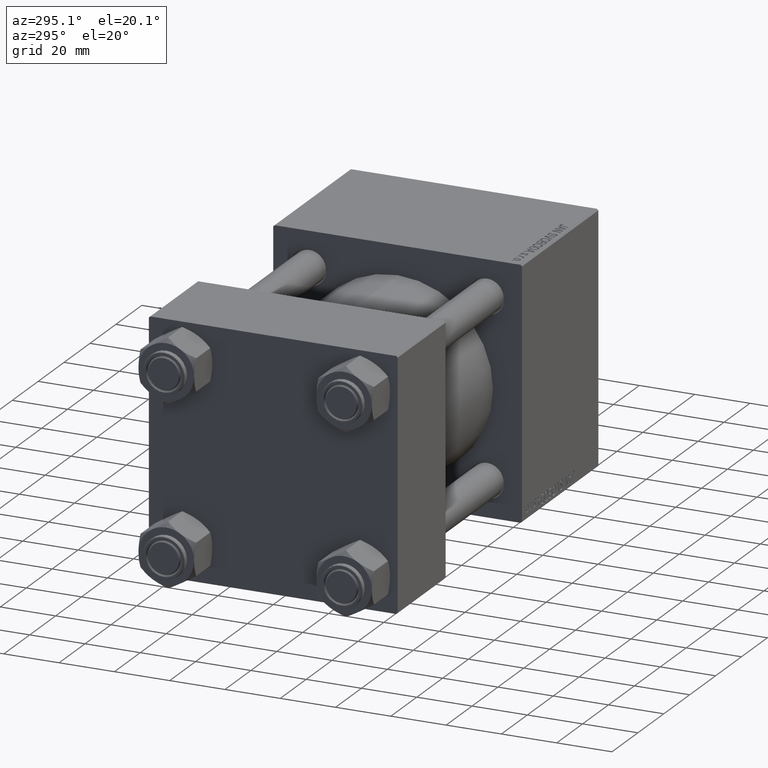
[diagram: clean part render]
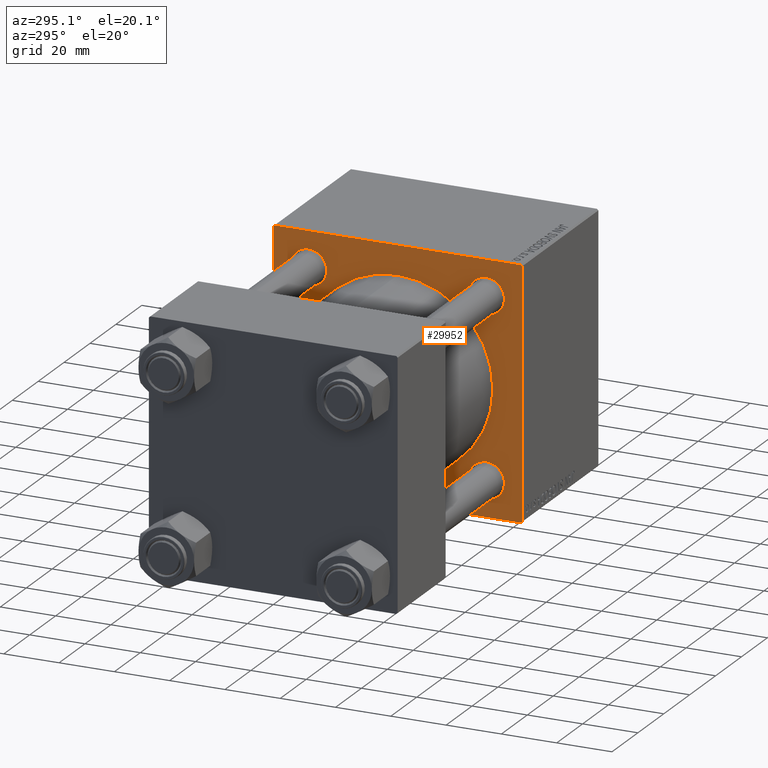
[diagram: same view with one face highlighted and labeled with its STEP entity id]
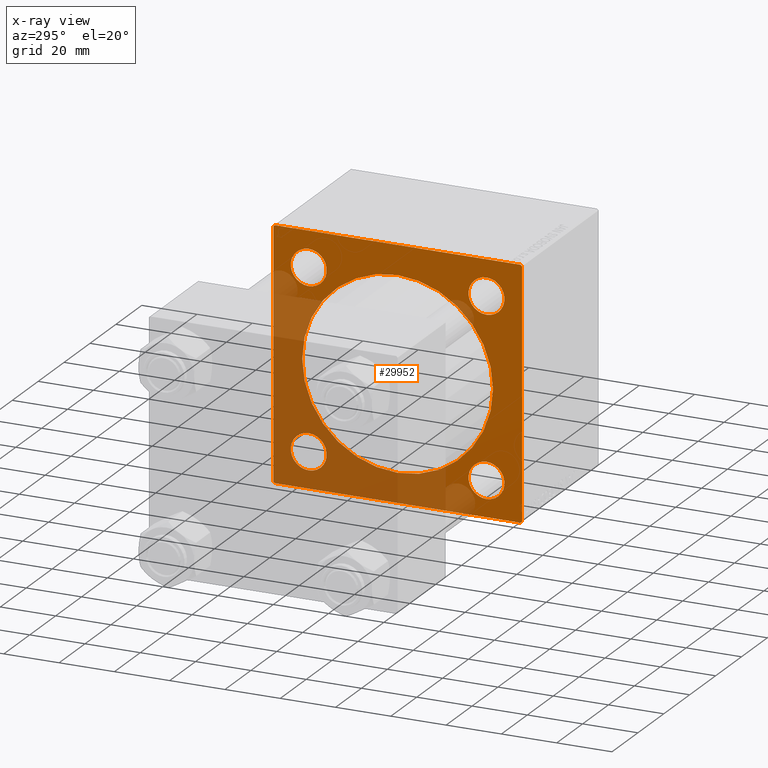
[diagram: x-ray of the same camera — body ghosted, the highlighted face saturated]
A machine part, auxiliary view. The second image highlights one B-rep face of the part: STEP entity #29952.
The next image is the same camera in x-ray: the body ghosted, the highlighted face saturated — about 42% of this face is hidden behind the body in this view.
In plain terms, the highlighted planar face has unit normal (-1, 0, 0).
Its self-contained STEP definition (entity closure, byte-faithful):
#27 = VECTOR ( 'NONE', #26180, 1000.000000000000114 ) ;
#410 = LINE ( 'NONE', #15891, #47507 ) ;
#999 = VERTEX_POINT ( 'NONE', #46483 ) ;
#1084 = ORIENTED_EDGE ( 'NONE', *, *, #8091, .T. ) ;
#1217 = LINE ( 'NONE', #16706, #19579 ) ;
#1396 = CARTESIAN_POINT ( 'NONE',  ( 96.00000000000000000, -45.00000000000000000, 44.49999999999995737 ) ) ;
#1727 = CIRCLE ( 'NONE', #35147, 6.500000000000005329 ) ;
#1833 = ORIENTED_EDGE ( 'NONE', *, *, #40652, .T. ) ;
#1907 = EDGE_CURVE ( 'NONE', #44711, #50215, #45719, .T. ) ;
#2358 = VERTEX_POINT ( 'NONE', #42083 ) ;
#2610 = DIRECTION ( 'NONE',  ( 1.000000000000000000, 0.000000000000000000, 0.000000000000000000 ) ) ;
#2962 = DIRECTION ( 'NONE',  ( 0.000000000000000000, 0.000000000000000000, 1.000000000000000000 ) ) ;
#4386 = DIRECTION ( 'NONE',  ( 0.000000000000000000, -1.000000000000000000, -1.541976423090495140E-16 ) ) ;
#4658 = CIRCLE ( 'NONE', #23334, 6.500000000000005329 ) ;
#5418 = ORIENTED_EDGE ( 'NONE', *, *, #27311, .T. ) ;
#5629 = DIRECTION ( 'NONE',  ( 0.000000000000000000, 0.000000000000000000, -1.000000000000000000 ) ) ;
#5931 = DIRECTION ( 'NONE',  ( 1.000000000000000000, 0.000000000000000000, 0.000000000000000000 ) ) ;
#6214 = FACE_BOUND ( 'NONE', #29185, .T. ) ;
#6270 = DIRECTION ( 'NONE',  ( 1.000000000000000000, 0.000000000000000000, 0.000000000000000000 ) ) ;
#6382 = CARTESIAN_POINT ( 'NONE',  ( 96.00000000000000000, -2.602085213965210642E-15, 0.000000000000000000 ) ) ;
#6550 = AXIS2_PLACEMENT_3D ( 'NONE', #34061, #34310, #6846 ) ;
#6846 = DIRECTION ( 'NONE',  ( 0.000000000000000000, 0.000000000000000000, 1.000000000000000000 ) ) ;
#7020 = EDGE_CURVE ( 'NONE', #15795, #37057, #25513, .T. ) ;
#7080 = VECTOR ( 'NONE', #4386, 1000.000000000000000 ) ;
#7179 = CARTESIAN_POINT ( 'NONE',  ( 96.00000000000000000, -44.99999999999999289, -44.49999999999991473 ) ) ;
#7248 = CARTESIAN_POINT ( 'NONE',  ( 96.00000000000000000, 32.14999999999999147, 32.15000000000000568 ) ) ;
#7677 = EDGE_CURVE ( 'NONE', #26199, #27263, #18752, .T. ) ;
#7689 = AXIS2_PLACEMENT_3D ( 'NONE', #7248, #6270, #45439 ) ;
#7718 = CARTESIAN_POINT ( 'NONE',  ( 96.00000000000000000, 32.14999999999999147, -38.65000000000001279 ) ) ;
#7930 = CIRCLE ( 'NONE', #29022, 34.50000000000000000 ) ;
#7977 = EDGE_CURVE ( 'NONE', #37057, #15795, #12605, .T. ) ;
#8091 = EDGE_CURVE ( 'NONE', #28376, #44432, #410, .T. ) ;
#8110 = ORIENTED_EDGE ( 'NONE', *, *, #46058, .T. ) ;
#8226 = ORIENTED_EDGE ( 'NONE', *, *, #7977, .T. ) ;
#9226 = DIRECTION ( 'NONE',  ( 0.000000000000000000, 7.709882115452478166E-17, -1.000000000000000000 ) ) ;
#9334 = VECTOR ( 'NONE', #45498, 1000.000000000000000 ) ;
#9531 = DIRECTION ( 'NONE',  ( -1.000000000000000000, 0.000000000000000000, -0.000000000000000000 ) ) ;
#9770 = DIRECTION ( 'NONE',  ( 0.000000000000000000, -0.7071067811865524577, 0.7071067811865426878 ) ) ;
#9833 = DIRECTION ( 'NONE',  ( 1.000000000000000000, 0.000000000000000000, 0.000000000000000000 ) ) ;
#9980 = CARTESIAN_POINT ( 'NONE',  ( 96.00000000000000000, 45.00000000000001421, -45.00000000000000000 ) ) ;
#9994 = DIRECTION ( 'NONE',  ( 0.000000000000000000, 0.000000000000000000, -1.000000000000000000 ) ) ;
#10032 = FACE_BOUND ( 'NONE', #35093, .T. ) ;
#10154 = CARTESIAN_POINT ( 'NONE',  ( 96.00000000000000000, 32.14999999999999147, -32.15000000000000568 ) ) ;
#10211 = CARTESIAN_POINT ( 'NONE',  ( 96.00000000000000000, -2.602085213965210642E-15, 34.50000000000000000 ) ) ;
#10283 = FACE_OUTER_BOUND ( 'NONE', #15392, .T. ) ;
#10835 = CARTESIAN_POINT ( 'NONE',  ( 96.00000000000000000, -32.14999999999997726, -32.15000000000001279 ) ) ;
#10973 = EDGE_CURVE ( 'NONE', #22608, #34882, #20383, .T. ) ;
#11062 = EDGE_CURVE ( 'NONE', #50215, #44711, #7930, .T. ) ;
#12034 = EDGE_CURVE ( 'NONE', #48699, #34882, #48937, .T. ) ;
#12074 = CARTESIAN_POINT ( 'NONE',  ( 96.00000000000000000, 45.00000000000001421, 44.49999999999997158 ) ) ;
#12437 = AXIS2_PLACEMENT_3D ( 'NONE', #39529, #20178, #12795 ) ;
#12605 = CIRCLE ( 'NONE', #7689, 6.499999999999999112 ) ;
#12787 = LINE ( 'NONE', #9980, #46352 ) ;
#12795 = DIRECTION ( 'NONE',  ( 0.000000000000000000, 0.000000000000000000, 1.000000000000000000 ) ) ;
#12919 = EDGE_CURVE ( 'NONE', #26734, #45342, #45215, .T. ) ;
#13442 = ORIENTED_EDGE ( 'NONE', *, *, #1907, .T. ) ;
#13477 = CARTESIAN_POINT ( 'NONE',  ( 96.00000000000000000, 44.75000000000000000, -44.75000000000000000 ) ) ;
#13719 = CARTESIAN_POINT ( 'NONE',  ( 96.00000000000000000, 45.00000000000001421, -44.49999999999997158 ) ) ;
#13847 = CIRCLE ( 'NONE', #6550, 6.500000000000005329 ) ;
#14893 = CARTESIAN_POINT ( 'NONE',  ( 96.00000000000000000, 32.14999999999999147, 32.15000000000000568 ) ) ;
#15392 = EDGE_LOOP ( 'NONE', ( #31514, #1084, #20232, #41533, #26276, #40713, #27122, #18200 ) ) ;
#15795 = VERTEX_POINT ( 'NONE', #25957 ) ;
#15801 = EDGE_LOOP ( 'NONE', ( #1833, #47666 ) ) ;
#15886 = CARTESIAN_POINT ( 'NONE',  ( 96.00000000000000000, -32.14999999999997726, -38.65000000000001990 ) ) ;
#15891 = CARTESIAN_POINT ( 'NONE',  ( 96.00000000000000000, -44.74999999999965183, -44.75000000000027001 ) ) ;
#16706 = CARTESIAN_POINT ( 'NONE',  ( 96.00000000000000000, 44.74999999999998579, 44.74999999999998579 ) ) ;
#17635 = DIRECTION ( 'NONE',  ( -0.000000000000000000, 0.7071067811865474617, 0.7071067811865474617 ) ) ;
#17646 = CARTESIAN_POINT ( 'NONE',  ( 96.00000000000000000, 0.000000000000000000, 0.000000000000000000 ) ) ;
#17735 = CARTESIAN_POINT ( 'NONE',  ( 96.00000000000000000, -32.14999999999997726, 32.15000000000001279 ) ) ;
#17968 = DIRECTION ( 'NONE',  ( 1.000000000000000000, 0.000000000000000000, 0.000000000000000000 ) ) ;
#18200 = ORIENTED_EDGE ( 'NONE', *, *, #42495, .T. ) ;
#18752 = LINE ( 'NONE', #26157, #9334 ) ;
#18758 = DIRECTION ( 'NONE',  ( 1.000000000000000000, 0.000000000000000000, 0.000000000000000000 ) ) ;
#19579 = VECTOR ( 'NONE', #39366, 1000.000000000000114 ) ;
#19618 = VECTOR ( 'NONE', #9226, 1000.000000000000000 ) ;
#20178 = DIRECTION ( 'NONE',  ( 1.000000000000000000, 0.000000000000000000, 0.000000000000000000 ) ) ;
#20232 = ORIENTED_EDGE ( 'NONE', *, *, #26825, .F. ) ;
#20383 = LINE ( 'NONE', #47617, #7080 ) ;
#20821 = EDGE_LOOP ( 'NONE', ( #44734, #27818 ) ) ;
#21157 = LINE ( 'NONE', #36206, #19618 ) ;
#21462 = VECTOR ( 'NONE', #17635, 1000.000000000000114 ) ;
#21780 = DIRECTION ( 'NONE',  ( 0.000000000000000000, 0.000000000000000000, 1.000000000000000000 ) ) ;
#21805 = DIRECTION ( 'NONE',  ( 1.000000000000000000, 0.000000000000000000, 0.000000000000000000 ) ) ;
#22051 = AXIS2_PLACEMENT_3D ( 'NONE', #17735, #21805, #44975 ) ;
#22346 = CARTESIAN_POINT ( 'NONE',  ( 96.00000000000000000, 44.49999999999998579, 45.00000000000000000 ) ) ;
#22608 = VERTEX_POINT ( 'NONE', #22346 ) ;
#23334 = AXIS2_PLACEMENT_3D ( 'NONE', #10154, #18758, #26641 ) ;
#24756 = DIRECTION ( 'NONE',  ( 0.000000000000000000, 0.000000000000000000, 1.000000000000000000 ) ) ;
#24877 = ORIENTED_EDGE ( 'NONE', *, *, #7020, .T. ) ;
#25035 = FACE_BOUND ( 'NONE', #15801, .T. ) ;
#25158 = CARTESIAN_POINT ( 'NONE',  ( 96.00000000000000000, -32.14999999999997726, 25.65000000000000213 ) ) ;
#25488 = DIRECTION ( 'NONE',  ( 0.000000000000000000, -1.000000000000000000, 0.000000000000000000 ) ) ;
#25513 = CIRCLE ( 'NONE', #46662, 6.499999999999999112 ) ;
#25789 = DIRECTION ( 'NONE',  ( -0.000000000000000000, 0.000000000000000000, 1.000000000000000000 ) ) ;
#25957 = CARTESIAN_POINT ( 'NONE',  ( 96.00000000000000000, 32.14999999999999147, 38.65000000000001279 ) ) ;
#26025 = CARTESIAN_POINT ( 'NONE',  ( 96.00000000000000000, 32.14999999999999147, -25.64999999999999858 ) ) ;
#26122 = ORIENTED_EDGE ( 'NONE', *, *, #11062, .T. ) ;
#26157 = CARTESIAN_POINT ( 'NONE',  ( 96.00000000000000000, 45.00000000000001421, 45.00000000000000000 ) ) ;
#26180 = DIRECTION ( 'NONE',  ( -0.000000000000000000, -0.7071067811865474617, -0.7071067811865474617 ) ) ;
#26199 = VERTEX_POINT ( 'NONE', #12074 ) ;
#26276 = ORIENTED_EDGE ( 'NONE', *, *, #10973, .F. ) ;
#26474 = CARTESIAN_POINT ( 'NONE',  ( 96.00000000000000000, -32.14999999999997726, 38.65000000000002700 ) ) ;
#26641 = DIRECTION ( 'NONE',  ( 0.000000000000000000, 0.000000000000000000, 1.000000000000000000 ) ) ;
#26734 = VERTEX_POINT ( 'NONE', #7718 ) ;
#26825 = EDGE_CURVE ( 'NONE', #48699, #44432, #21157, .T. ) ;
#26936 = EDGE_CURVE ( 'NONE', #999, #28376, #12787, .T. ) ;
#26991 = EDGE_LOOP ( 'NONE', ( #13442, #26122 ) ) ;
#27122 = ORIENTED_EDGE ( 'NONE', *, *, #7677, .T. ) ;
#27263 = VERTEX_POINT ( 'NONE', #13719 ) ;
#27311 = EDGE_CURVE ( 'NONE', #45894, #49989, #13847, .T. ) ;
#27818 = ORIENTED_EDGE ( 'NONE', *, *, #32325, .T. ) ;
#28253 = AXIS2_PLACEMENT_3D ( 'NONE', #41042, #5931, #24756 ) ;
#28376 = VERTEX_POINT ( 'NONE', #46777 ) ;
#28859 = PLANE ( 'NONE',  #47274 ) ;
#29022 = AXIS2_PLACEMENT_3D ( 'NONE', #6382, #49369, #5629 ) ;
#29185 = EDGE_LOOP ( 'NONE', ( #24877, #8226 ) ) ;
#29427 = CARTESIAN_POINT ( 'NONE',  ( 96.00000000000000000, 1.622946243093158675E-15, -34.50000000000000000 ) ) ;
#29674 = CARTESIAN_POINT ( 'NONE',  ( 96.00000000000000000, 32.14999999999999147, 25.65000000000000213 ) ) ;
#29952 = ADVANCED_FACE ( 'NONE', ( #10032, #6214, #25035, #48948, #48688, #10283 ), #28859, .T. ) ;
#31514 = ORIENTED_EDGE ( 'NONE', *, *, #26936, .T. ) ;
#32325 = EDGE_CURVE ( 'NONE', #36464, #2358, #48163, .T. ) ;
#34061 = CARTESIAN_POINT ( 'NONE',  ( 96.00000000000000000, -32.14999999999997726, 32.15000000000001279 ) ) ;
#34310 = DIRECTION ( 'NONE',  ( 1.000000000000000000, 0.000000000000000000, 0.000000000000000000 ) ) ;
#34882 = VERTEX_POINT ( 'NONE', #39011 ) ;
#35093 = EDGE_LOOP ( 'NONE', ( #8110, #5418 ) ) ;
#35147 = AXIS2_PLACEMENT_3D ( 'NONE', #10835, #9833, #21780 ) ;
#36206 = CARTESIAN_POINT ( 'NONE',  ( 96.00000000000000000, -45.00000000000000000, 44.99999999999998579 ) ) ;
#36464 = VERTEX_POINT ( 'NONE', #15886 ) ;
#37057 = VERTEX_POINT ( 'NONE', #29674 ) ;
#37582 = AXIS2_PLACEMENT_3D ( 'NONE', #48401, #2610, #9994 ) ;
#39011 = CARTESIAN_POINT ( 'NONE',  ( 96.00000000000000000, -44.49999999999994316, 44.99999999999998579 ) ) ;
#39366 = DIRECTION ( 'NONE',  ( 0.000000000000000000, 0.7071067811865474617, -0.7071067811865474617 ) ) ;
#39529 = CARTESIAN_POINT ( 'NONE',  ( 96.00000000000000000, -32.14999999999997726, -32.15000000000001279 ) ) ;
#40652 = EDGE_CURVE ( 'NONE', #45342, #26734, #4658, .T. ) ;
#40702 = LINE ( 'NONE', #13477, #27 ) ;
#40713 = ORIENTED_EDGE ( 'NONE', *, *, #44729, .T. ) ;
#41042 = CARTESIAN_POINT ( 'NONE',  ( 96.00000000000000000, 32.14999999999999147, -32.15000000000000568 ) ) ;
#41533 = ORIENTED_EDGE ( 'NONE', *, *, #12034, .T. ) ;
#42083 = CARTESIAN_POINT ( 'NONE',  ( 96.00000000000000000, -32.14999999999997726, -25.65000000000000568 ) ) ;
#42495 = EDGE_CURVE ( 'NONE', #27263, #999, #40702, .T. ) ;
#44432 = VERTEX_POINT ( 'NONE', #7179 ) ;
#44711 = VERTEX_POINT ( 'NONE', #10211 ) ;
#44729 = EDGE_CURVE ( 'NONE', #22608, #26199, #1217, .T. ) ;
#44734 = ORIENTED_EDGE ( 'NONE', *, *, #49363, .T. ) ;
#44975 = DIRECTION ( 'NONE',  ( 0.000000000000000000, 0.000000000000000000, 1.000000000000000000 ) ) ;
#45124 = CARTESIAN_POINT ( 'NONE',  ( 96.00000000000000000, -44.74999999999997158, 44.74999999999997158 ) ) ;
#45215 = CIRCLE ( 'NONE', #28253, 6.500000000000005329 ) ;
#45342 = VERTEX_POINT ( 'NONE', #26025 ) ;
#45439 = DIRECTION ( 'NONE',  ( 0.000000000000000000, 0.000000000000000000, 1.000000000000000000 ) ) ;
#45498 = DIRECTION ( 'NONE',  ( 0.000000000000000000, 0.000000000000000000, -1.000000000000000000 ) ) ;
#45719 = CIRCLE ( 'NONE', #37582, 34.50000000000000000 ) ;
#45894 = VERTEX_POINT ( 'NONE', #25158 ) ;
#46058 = EDGE_CURVE ( 'NONE', #49989, #45894, #46462, .T. ) ;
#46352 = VECTOR ( 'NONE', #25488, 1000.000000000000000 ) ;
#46462 = CIRCLE ( 'NONE', #22051, 6.500000000000005329 ) ;
#46483 = CARTESIAN_POINT ( 'NONE',  ( 96.00000000000000000, 44.50000000000001421, -45.00000000000000000 ) ) ;
#46662 = AXIS2_PLACEMENT_3D ( 'NONE', #14893, #17968, #2962 ) ;
#46777 = CARTESIAN_POINT ( 'NONE',  ( 96.00000000000000000, -44.49999999999990052, -45.00000000000000000 ) ) ;
#47274 = AXIS2_PLACEMENT_3D ( 'NONE', #17646, #9531, #25789 ) ;
#47507 = VECTOR ( 'NONE', #9770, 1000.000000000000000 ) ;
#47617 = CARTESIAN_POINT ( 'NONE',  ( 96.00000000000000000, 45.00000000000001421, 45.00000000000000000 ) ) ;
#47666 = ORIENTED_EDGE ( 'NONE', *, *, #12919, .T. ) ;
#48163 = CIRCLE ( 'NONE', #12437, 6.500000000000005329 ) ;
#48401 = CARTESIAN_POINT ( 'NONE',  ( 96.00000000000000000, -2.602085213965210642E-15, 0.000000000000000000 ) ) ;
#48688 = FACE_BOUND ( 'NONE', #26991, .T. ) ;
#48699 = VERTEX_POINT ( 'NONE', #1396 ) ;
#48937 = LINE ( 'NONE', #45124, #21462 ) ;
#48948 = FACE_BOUND ( 'NONE', #20821, .T. ) ;
#49363 = EDGE_CURVE ( 'NONE', #2358, #36464, #1727, .T. ) ;
#49369 = DIRECTION ( 'NONE',  ( 1.000000000000000000, 0.000000000000000000, 0.000000000000000000 ) ) ;
#49989 = VERTEX_POINT ( 'NONE', #26474 ) ;
#50215 = VERTEX_POINT ( 'NONE', #29427 ) ;